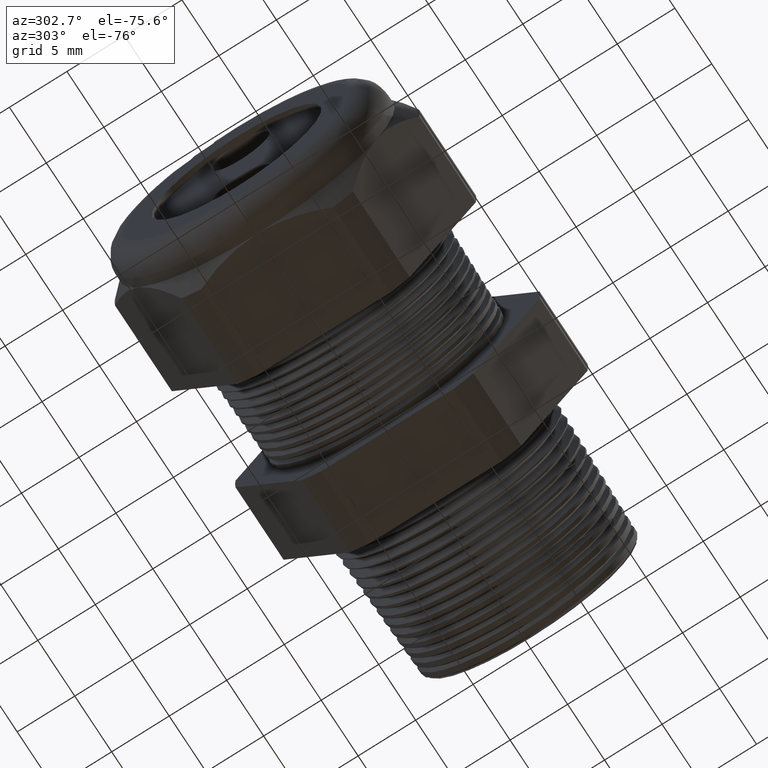
[diagram: clean part render]
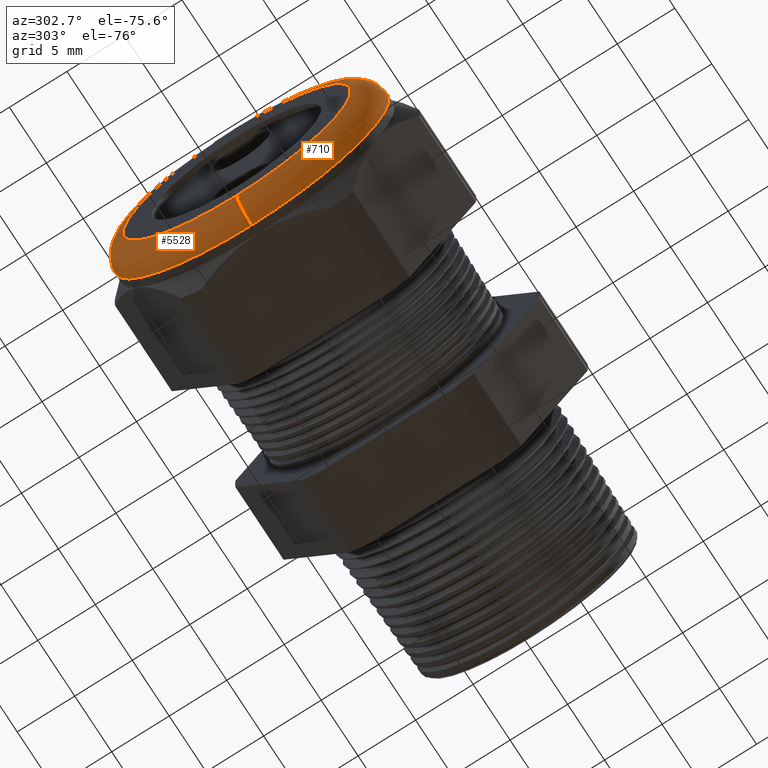
[diagram: same view with one multi-face feature highlighted, each face labeled with its STEP entity id]
A machine part, auxiliary view. The highlighted faces form ONE feature: a constant-radius fillet chain: 2 tangent blend faces with common blend radius 2.032 mm. The faces share edges in the B-rep.
Their STEP definitions:
[1] entity #710 (Torus):
#551 = EDGE_CURVE ( 'NONE', #5513, #5514, #2802, .T. ) ;
#612 = EDGE_CURVE ( 'NONE', #5527, #5525, #2882, .T. ) ;
#710 = ADVANCED_FACE ( 'NONE', ( #3060 ), #3055, .T. ) ;
#711 = EDGE_LOOP ( 'NONE', ( #712, #770, #771, #772 ) ) ;
#712 = ORIENTED_EDGE ( 'NONE', *, *, #5519, .F. ) ;
#770 = ORIENTED_EDGE ( 'NONE', *, *, #612, .F. ) ;
#771 = ORIENTED_EDGE ( 'NONE', *, *, #5552, .T. ) ;
#772 = ORIENTED_EDGE ( 'NONE', *, *, #551, .F. ) ;
#2798 = DIRECTION ( 'NONE',  ( 0.0000000000000000000, 0.0000000000000000000, 1.000000000000000000 ) ) ;
#2799 = DIRECTION ( 'NONE',  ( -1.000000000000000000, 0.0000000000000000000, 0.0000000000000000000 ) ) ;
#2800 = CARTESIAN_POINT ( 'NONE',  ( -1.370000000000000300, 0.0000000000000000000, 0.0000000000000000000 ) ) ;
#2801 = AXIS2_PLACEMENT_3D ( 'NONE', #2800, #2799, #2798 ) ;
#2802 = CIRCLE ( 'NONE', #2801, 0.3899999999999999600 ) ;
#2879 = DIRECTION ( 'NONE',  ( 0.0000000000000000000, 0.0000000000000000000, 1.000000000000000000 ) ) ;
#2880 = DIRECTION ( 'NONE',  ( 1.000000000000000000, 0.0000000000000000000, 0.0000000000000000000 ) ) ;
#2881 = AXIS2_PLACEMENT_3D ( 'NONE', #2887, #2880, #2879 ) ;
#2882 = CIRCLE ( 'NONE', #2881, 0.4699999999999999200 ) ;
#2887 = CARTESIAN_POINT ( 'NONE',  ( -1.290000000000000500, 0.0000000000000000000, 0.0000000000000000000 ) ) ;
#3051 = DIRECTION ( 'NONE',  ( 0.0000000000000000000, 0.0000000000000000000, 1.000000000000000000 ) ) ;
#3052 = DIRECTION ( 'NONE',  ( -1.000000000000000000, 0.0000000000000000000, 0.0000000000000000000 ) ) ;
#3053 = CARTESIAN_POINT ( 'NONE',  ( -1.290000000000000500, 0.0000000000000000000, 0.0000000000000000000 ) ) ;
#3054 = AXIS2_PLACEMENT_3D ( 'NONE', #3053, #3052, #3051 ) ;
#3055 = TOROIDAL_SURFACE ( 'NONE', #3054, 0.3899999999999999600, 0.08000000000000000200 ) ;
#3060 = FACE_OUTER_BOUND ( 'NONE', #711, .T. ) ;
#5025 = CARTESIAN_POINT ( 'NONE',  ( -1.370000000000000300, 5.265981236333617600E-017, -0.3899999999999999600 ) ) ;
#5064 = CARTESIAN_POINT ( 'NONE',  ( -1.290000000000000500, 5.755839955992558400E-017, 0.4699999999999999200 ) ) ;
#5069 = CARTESIAN_POINT ( 'NONE',  ( -1.290000000000000500, 0.0000000000000000000, -0.4699999999999999200 ) ) ;
#5075 = DIRECTION ( 'NONE',  ( 0.0000000000000000000, -1.224646799147353900E-016, 1.000000000000000000 ) ) ;
#5076 = DIRECTION ( 'NONE',  ( 0.0000000000000000000, 1.000000000000000000, 1.224646799147353200E-016 ) ) ;
#5077 = CARTESIAN_POINT ( 'NONE',  ( -1.290000000000000500, 4.776122516674676800E-017, -0.3899999999999999600 ) ) ;
#5078 = AXIS2_PLACEMENT_3D ( 'NONE', #5077, #5076, #5075 ) ;
#5079 = CIRCLE ( 'NONE', #5078, 0.07999999999999996000 ) ;
#5089 = CARTESIAN_POINT ( 'NONE',  ( -1.370000000000000300, 0.0000000000000000000, 0.3899999999999999600 ) ) ;
#5135 = DIRECTION ( 'NONE',  ( 0.0000000000000000000, 0.0000000000000000000, -1.000000000000000000 ) ) ;
#5136 = DIRECTION ( 'NONE',  ( 0.0000000000000000000, -1.000000000000000000, 0.0000000000000000000 ) ) ;
#5137 = CARTESIAN_POINT ( 'NONE',  ( -1.290000000000000500, 0.0000000000000000000, 0.3899999999999999600 ) ) ;
#5138 = AXIS2_PLACEMENT_3D ( 'NONE', #5137, #5136, #5135 ) ;
#5139 = CIRCLE ( 'NONE', #5138, 0.07999999999999996000 ) ;
#5513 = VERTEX_POINT ( 'NONE', #5025 ) ;
#5514 = VERTEX_POINT ( 'NONE', #5089 ) ;
#5519 = EDGE_CURVE ( 'NONE', #5525, #5513, #5079, .T. ) ;
#5525 = VERTEX_POINT ( 'NONE', #5069 ) ;
#5527 = VERTEX_POINT ( 'NONE', #5064 ) ;
#5552 = EDGE_CURVE ( 'NONE', #5527, #5514, #5139, .T. ) ;
[2] entity #5528 (Torus):
#5025 = CARTESIAN_POINT ( 'NONE',  ( -1.370000000000000300, 5.265981236333617600E-017, -0.3899999999999999600 ) ) ;
#5058 = DIRECTION ( 'NONE',  ( 0.0000000000000000000, 0.0000000000000000000, 1.000000000000000000 ) ) ;
#5059 = DIRECTION ( 'NONE',  ( -1.000000000000000000, 0.0000000000000000000, 0.0000000000000000000 ) ) ;
#5060 = CARTESIAN_POINT ( 'NONE',  ( -1.290000000000000500, 0.0000000000000000000, 0.0000000000000000000 ) ) ;
#5061 = AXIS2_PLACEMENT_3D ( 'NONE', #5060, #5059, #5058 ) ;
#5062 = TOROIDAL_SURFACE ( 'NONE', #5061, 0.3899999999999999600, 0.08000000000000000200 ) ;
#5063 = FACE_OUTER_BOUND ( 'NONE', #5521, .T. ) ;
#5064 = CARTESIAN_POINT ( 'NONE',  ( -1.290000000000000500, 5.755839955992558400E-017, 0.4699999999999999200 ) ) ;
#5069 = CARTESIAN_POINT ( 'NONE',  ( -1.290000000000000500, 0.0000000000000000000, -0.4699999999999999200 ) ) ;
#5070 = DIRECTION ( 'NONE',  ( 0.0000000000000000000, 0.0000000000000000000, 1.000000000000000000 ) ) ;
#5071 = DIRECTION ( 'NONE',  ( 1.000000000000000000, 0.0000000000000000000, 0.0000000000000000000 ) ) ;
#5072 = CARTESIAN_POINT ( 'NONE',  ( -1.290000000000000500, 0.0000000000000000000, 0.0000000000000000000 ) ) ;
#5073 = AXIS2_PLACEMENT_3D ( 'NONE', #5072, #5071, #5070 ) ;
#5074 = CIRCLE ( 'NONE', #5073, 0.4699999999999999200 ) ;
#5075 = DIRECTION ( 'NONE',  ( 0.0000000000000000000, -1.224646799147353900E-016, 1.000000000000000000 ) ) ;
#5076 = DIRECTION ( 'NONE',  ( 0.0000000000000000000, 1.000000000000000000, 1.224646799147353200E-016 ) ) ;
#5077 = CARTESIAN_POINT ( 'NONE',  ( -1.290000000000000500, 4.776122516674676800E-017, -0.3899999999999999600 ) ) ;
#5078 = AXIS2_PLACEMENT_3D ( 'NONE', #5077, #5076, #5075 ) ;
#5079 = CIRCLE ( 'NONE', #5078, 0.07999999999999996000 ) ;
#5080 = DIRECTION ( 'NONE',  ( 0.0000000000000000000, 0.0000000000000000000, 1.000000000000000000 ) ) ;
#5081 = DIRECTION ( 'NONE',  ( -1.000000000000000000, 0.0000000000000000000, 0.0000000000000000000 ) ) ;
#5082 = CARTESIAN_POINT ( 'NONE',  ( -1.370000000000000300, 0.0000000000000000000, 0.0000000000000000000 ) ) ;
#5083 = AXIS2_PLACEMENT_3D ( 'NONE', #5082, #5081, #5080 ) ;
#5084 = CIRCLE ( 'NONE', #5083, 0.3899999999999999600 ) ;
#5089 = CARTESIAN_POINT ( 'NONE',  ( -1.370000000000000300, 0.0000000000000000000, 0.3899999999999999600 ) ) ;
#5135 = DIRECTION ( 'NONE',  ( 0.0000000000000000000, 0.0000000000000000000, -1.000000000000000000 ) ) ;
#5136 = DIRECTION ( 'NONE',  ( 0.0000000000000000000, -1.000000000000000000, 0.0000000000000000000 ) ) ;
#5137 = CARTESIAN_POINT ( 'NONE',  ( -1.290000000000000500, 0.0000000000000000000, 0.3899999999999999600 ) ) ;
#5138 = AXIS2_PLACEMENT_3D ( 'NONE', #5137, #5136, #5135 ) ;
#5139 = CIRCLE ( 'NONE', #5138, 0.07999999999999996000 ) ;
#5513 = VERTEX_POINT ( 'NONE', #5025 ) ;
#5514 = VERTEX_POINT ( 'NONE', #5089 ) ;
#5517 = EDGE_CURVE ( 'NONE', #5514, #5513, #5084, .T. ) ;
#5518 = ORIENTED_EDGE ( 'NONE', *, *, #5517, .F. ) ;
#5519 = EDGE_CURVE ( 'NONE', #5525, #5513, #5079, .T. ) ;
#5520 = ORIENTED_EDGE ( 'NONE', *, *, #5524, .F. ) ;
#5521 = EDGE_LOOP ( 'NONE', ( #5520, #5522, #5518, #5559 ) ) ;
#5522 = ORIENTED_EDGE ( 'NONE', *, *, #5519, .T. ) ;
#5524 = EDGE_CURVE ( 'NONE', #5525, #5527, #5074, .T. ) ;
#5525 = VERTEX_POINT ( 'NONE', #5069 ) ;
#5527 = VERTEX_POINT ( 'NONE', #5064 ) ;
#5528 = ADVANCED_FACE ( 'NONE', ( #5063 ), #5062, .T. ) ;
#5552 = EDGE_CURVE ( 'NONE', #5527, #5514, #5139, .T. ) ;
#5559 = ORIENTED_EDGE ( 'NONE', *, *, #5552, .F. ) ;